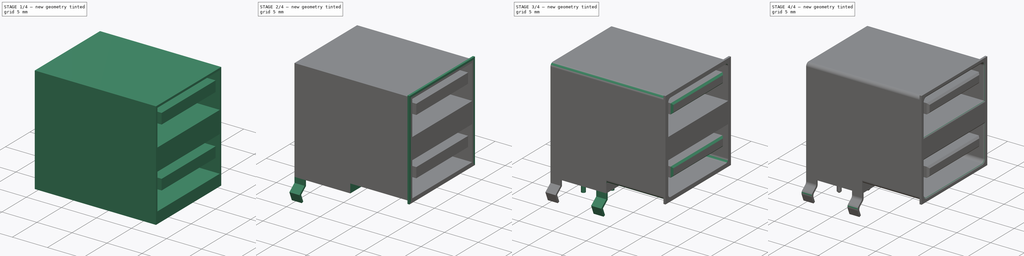
[diagram: build sequence overview — one tinted view per stage of 4, left to right]
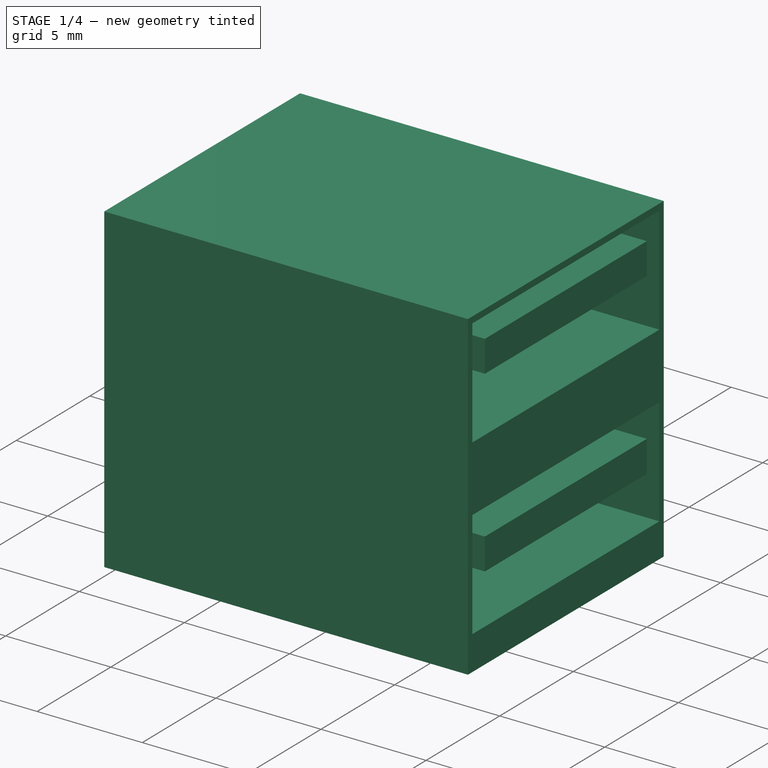
[diagram: stage 1 of 4 — iso view after this stage's code; geometry added in this stage tinted green]
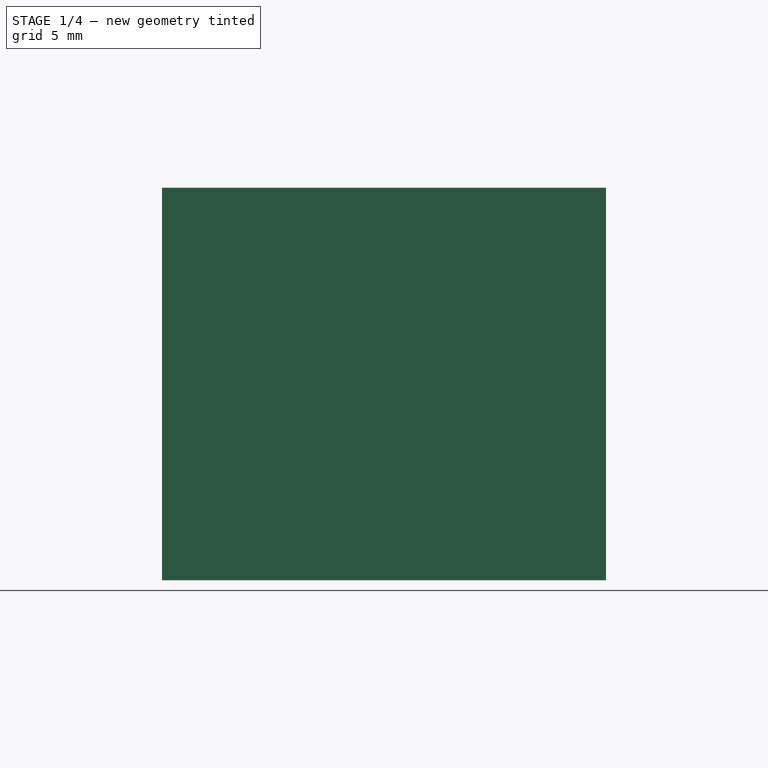
[diagram: stage 1 of 4 — front view after this stage's code; geometry added in this stage tinted green]
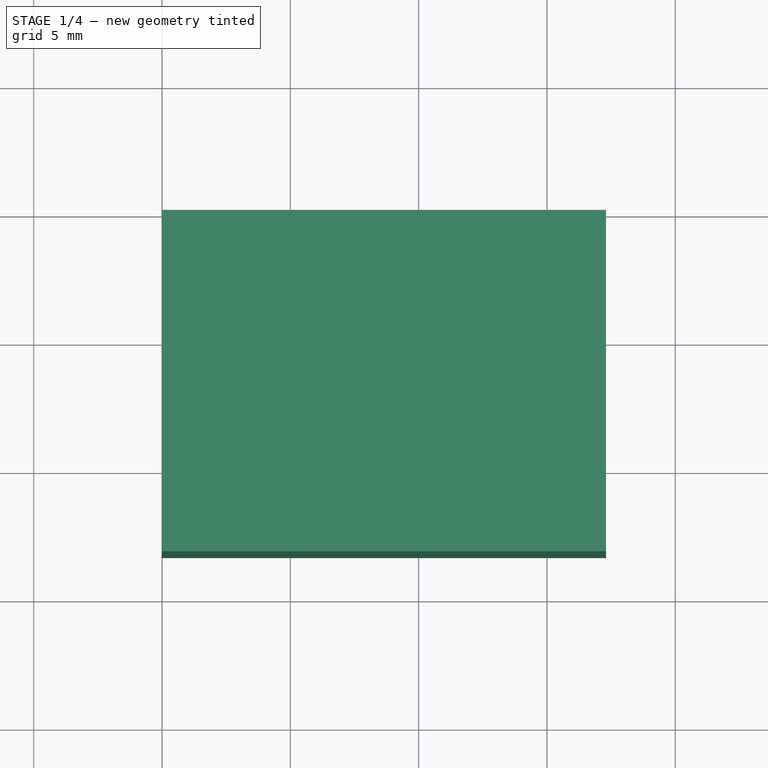
[diagram: stage 1 of 4 — top view after this stage's code; geometry added in this stage tinted green]
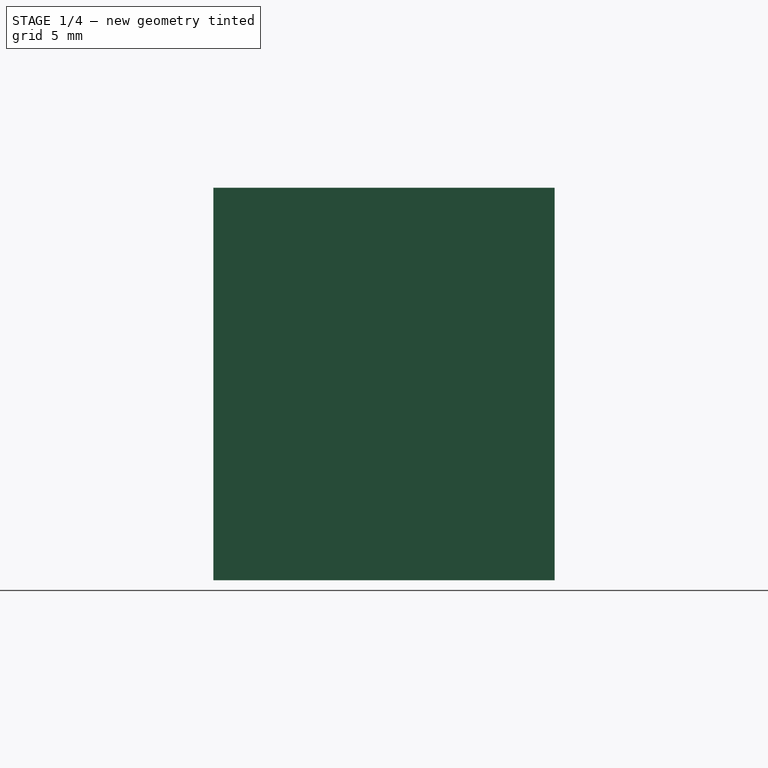
[diagram: stage 1 of 4 — right view after this stage's code; geometry added in this stage tinted green]
FCSTD DOCUMENT  (FreeCAD 0.14R3702 (Git))
Label: USB-2_0-type-A-Dual-Stacked-jack-PCB
License: CC-BY 3.0
LicenseURL: http://creativecommons.org/licenses/by/3.0/
objects: Sketcher::SketchObject×7, PartDesign::Pad×5, PartDesign::Fillet×3, PartDesign::Pocket×2, PartDesign::Chamfer×2, PartDesign::LinearPattern×1
note: 27 computed .brp shape members not serialized (recipe doc carries the construction recipe); baked Part::Feature solids carry a one-line shape summary decoded from their .brp

FEATURE [Sketcher::SketchObject] Sketch
  sketch-geometry (4):
    g0: LineSegment StartX=0 StartY=0 StartZ=0 EndX=17.3 EndY=0 EndZ=0
    g1: LineSegment StartX=17.3 StartY=0 StartZ=0 EndX=17.3 EndY=-13.3 EndZ=0
    g2: LineSegment StartX=17.3 StartY=-13.3 StartZ=0 EndX=0 EndY=-13.3 EndZ=0
    g3: LineSegment StartX=0 StartY=-13.3 StartZ=0 EndX=0 EndY=0 EndZ=0
  constraints (11):
    c: Coincident(g0,g1)
    c: Coincident(g1,g2)
    c: Coincident(g2,g3)
    c: Coincident(g3,g0)
    c: Horizontal(g0)
    c: Horizontal(g2)
    c: Vertical(g1)
    c: Vertical(g3)
    c: Coincident(g0,g-1)
    c: DistanceX(g-1,g0) = 17.3
    c: DistanceY(g0,g1) = -13.3
FEATURE [PartDesign::Pad] Pad
  Length = 15.29
  Length2 = 100
  Sketch = -> Sketch
  Type = 0
FEATURE [Sketcher::SketchObject] Sketch001
  ExternalGeometry = -> [Pad]
  Placement = pos=(17.3,0,0) rot=(0.57735,0.57735,0.57735;2.0944rad)
  Support = -> Pad [Face2]
  sketch-geometry (10):
    g0: LineSegment StartX=-13 StartY=6.75 StartZ=0 EndX=-0.3 EndY=6.75 EndZ=0
    g1: LineSegment StartX=-0.3 StartY=6.75 StartZ=0 EndX=-0.3 EndY=1.63 EndZ=0
    g2: LineSegment StartX=-0.3 StartY=1.63 StartZ=0 EndX=-13 EndY=1.63 EndZ=0
    g3: LineSegment StartX=-13 StartY=1.63 StartZ=0 EndX=-13 EndY=6.75 EndZ=0
    g4: LineSegment StartX=-13 StartY=14.99 StartZ=0 EndX=-0.3 EndY=14.99 EndZ=0
    g5: LineSegment StartX=-0.3 StartY=14.99 StartZ=0 EndX=-0.3 EndY=9.87 EndZ=0
    g6: LineSegment StartX=-0.3 StartY=9.87 StartZ=0 EndX=-13 EndY=9.87 EndZ=0
    g7: LineSegment StartX=-13 StartY=9.87 StartZ=0 EndX=-13 EndY=14.99 EndZ=0
    g8: LineSegment [constr] StartX=-13 StartY=12.43 StartZ=0 EndX=-0.3 EndY=12.43 EndZ=0
    g9: LineSegment [constr] StartX=-13 StartY=4.19 StartZ=0 EndX=-0.3 EndY=4.19 EndZ=0
  constraints (32):
    c: Coincident(g0,g1)
    c: Coincident(g1,g2)
    c: Coincident(g2,g3)
    c: Coincident(g3,g0)
    c: Horizontal(g0)
    c: Horizontal(g2)
    c: Vertical(g1)
    c: Vertical(g3)
    c: Coincident(g4,g5)
    c: Coincident(g5,g6)
    c: Coincident(g6,g7)
    c: Coincident(g7,g4)
    c: Horizontal(g4)
    c: Horizontal(g6)
    c: Vertical(g5)
    c: Vertical(g7)
    c: PointOnObject(g8,g7)
    c: PointOnObject(g8,g5)
    c: Horizontal(g8)
    c: PointOnObject(g9,g3)
    c: PointOnObject(g9,g1)
    c: Horizontal(g9)
    c: Symmetric(g6,g4,g8)
    c: Symmetric(g2,g0,g9)
    c: Equal(g5,g1)
    c: Equal(g6,g2)
    c: DistanceY(g-1,g9) = 4.19
    c: DistanceY(g1,g0) = 5.12
    c: DistanceY(g4,g-3) = 0.3
    c: DistanceX(g4,g-3) = 0.3
    c: DistanceX(g4,g-3) = -0.3
    c: DistanceX(g-1,g0) = -0.3
FEATURE [PartDesign::Pocket] Pocket
  Length = 9
  Sketch = -> Sketch001
  Type = 0
FEATURE [Sketcher::SketchObject] Sketch002
  Placement = pos=(8.3,0,0) rot=(0.57735,0.57735,0.57735;2.0944rad)
  Support = -> Pocket [Face15]
  sketch-geometry (8):
    g0: LineSegment StartX=-12.15 StartY=14 StartZ=0 EndX=-1.15 EndY=14 EndZ=0
    g1: LineSegment StartX=-1.15 StartY=14 StartZ=0 EndX=-1.15 EndY=12.5 EndZ=0
    g2: LineSegment StartX=-1.15 StartY=12.5 StartZ=0 EndX=-12.15 EndY=12.5 EndZ=0
    g3: LineSegment StartX=-12.15 StartY=12.5 StartZ=0 EndX=-12.15 EndY=14 EndZ=0
    g4: LineSegment StartX=-12.15 StartY=5.5 StartZ=0 EndX=-1.15 EndY=5.5 EndZ=0
    g5: LineSegment StartX=-1.15 StartY=5.5 StartZ=0 EndX=-1.15 EndY=4 EndZ=0
    g6: LineSegment StartX=-1.15 StartY=4 StartZ=0 EndX=-12.15 EndY=4 EndZ=0
    g7: LineSegment StartX=-12.15 StartY=4 StartZ=0 EndX=-12.15 EndY=5.5 EndZ=0
  constraints (24):
    c: Coincident(g0,g1)
    c: Coincident(g1,g2)
    c: Coincident(g2,g3)
    c: Coincident(g3,g0)
    c: Horizontal(g0)
    c: Horizontal(g2)
    c: Vertical(g1)
    c: Vertical(g3)
    c: Coincident(g4,g5)
    c: Coincident(g5,g6)
    c: Coincident(g6,g7)
    c: Coincident(g7,g4)
    c: Horizontal(g4)
    c: Horizontal(g6)
    c: Vertical(g5)
    c: Vertical(g7)
    c: DistanceY(g1,g0) = 1.5
    c: DistanceX(g2,g1) = 11
    c: DistanceX(g5,g6) = -11
    c: DistanceY(g5,g4) = 1.5
    c: DistanceY(g5,g1) = 8.5
    c: DistanceY(g-1,g5) = 4
    c: DistanceX(g-1,g5) = -1.15
    c: DistanceX(g-1,g1) = -1.15
FEATURE [PartDesign::Pad] Pad001
  Length = 9
  Length2 = 100
  Sketch = -> Sketch002
  Type = 0
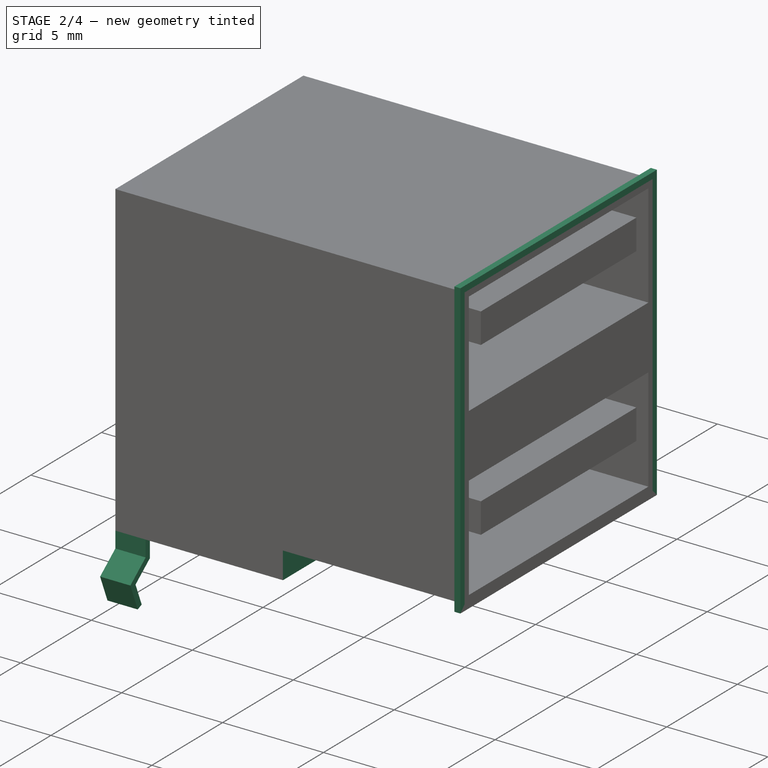
[diagram: stage 2 of 4 — iso view after this stage's code; geometry added in this stage tinted green]
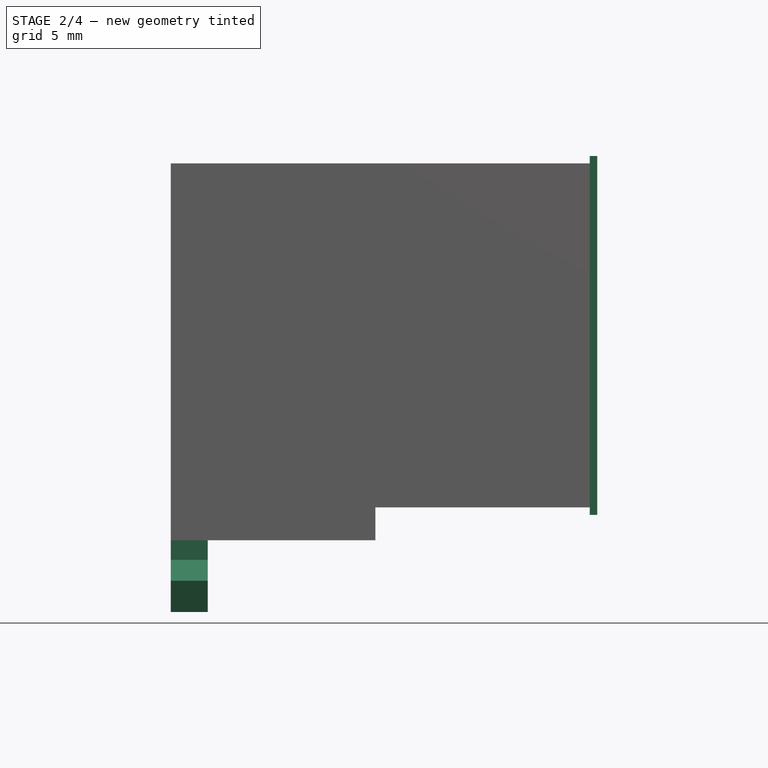
[diagram: stage 2 of 4 — front view after this stage's code; geometry added in this stage tinted green]
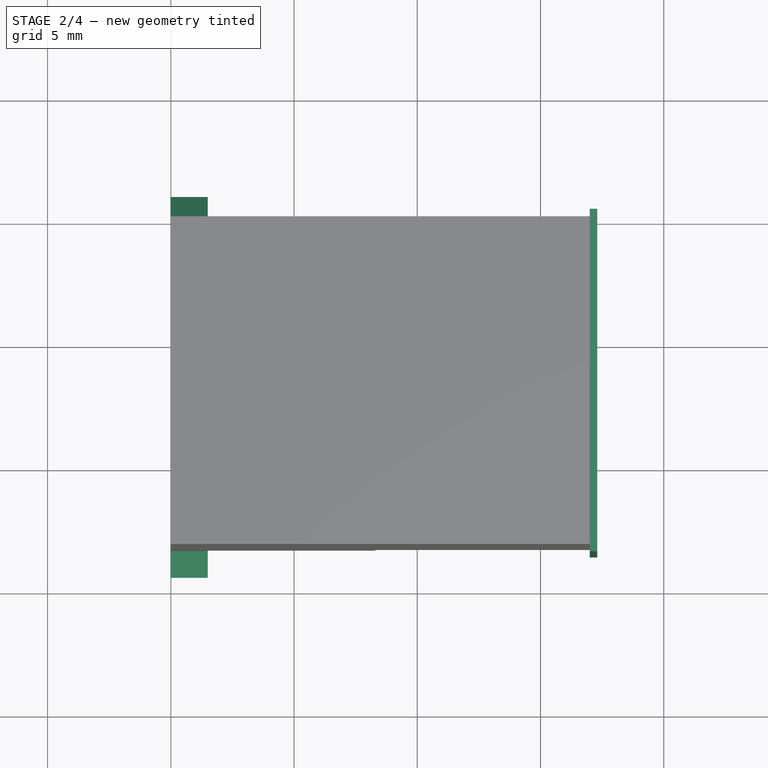
[diagram: stage 2 of 4 — top view after this stage's code; geometry added in this stage tinted green]
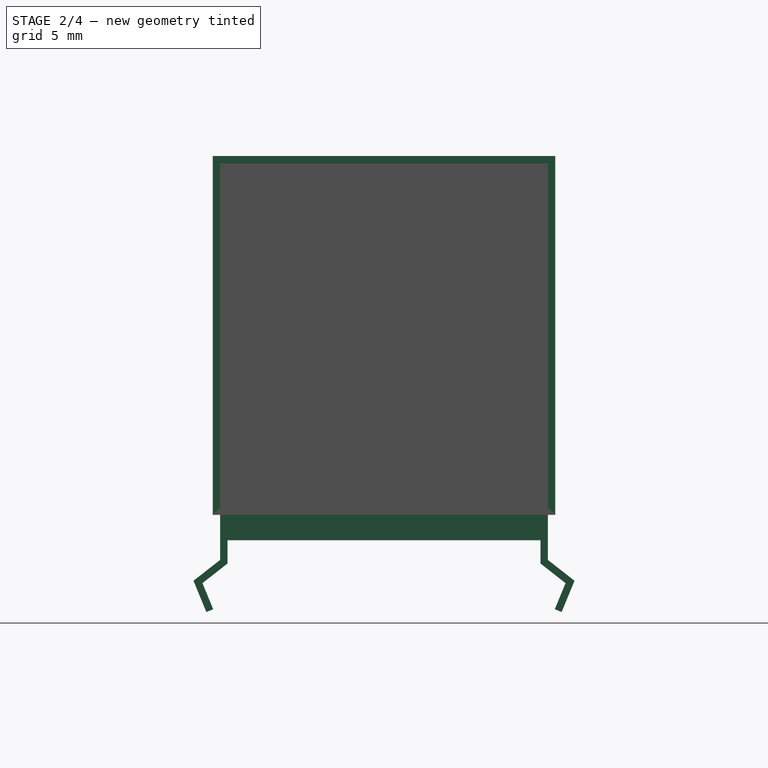
[diagram: stage 2 of 4 — right view after this stage's code; geometry added in this stage tinted green]
FEATURE [Sketcher::SketchObject] Sketch003
  ExternalGeometry = -> [Pad001]
  Placement = pos=(17.3,0,0) rot=(0.57735,0.57735,0.57735;2.0944rad)
  Support = -> Pad001 [Face3]
  sketch-geometry (4):
    g0: LineSegment StartX=0 StartY=0 StartZ=0 EndX=-13.3 EndY=0 EndZ=0
    g1: LineSegment StartX=-13.3 StartY=0 StartZ=0 EndX=-13.3 EndY=1.33 EndZ=0
    g2: LineSegment StartX=-13.3 StartY=1.33 StartZ=0 EndX=0 EndY=1.33 EndZ=0
    g3: LineSegment StartX=0 StartY=1.33 StartZ=0 EndX=0 EndY=0 EndZ=0
  constraints (11):
    c: Coincident(g0,g1)
    c: Coincident(g1,g2)
    c: Coincident(g2,g3)
    c: Coincident(g3,g0)
    c: Horizontal(g0)
    c: Horizontal(g2)
    c: Vertical(g1)
    c: Vertical(g3)
    c: Coincident(g0,g-1)
    c: DistanceX(g-1,g0) = -13.3
    c: DistanceY(g2,g-3) = 0.3
FEATURE [PartDesign::Pocket] Pocket001
  Length = 9
  Sketch = -> Sketch003
  Type = 0
FEATURE [Sketcher::SketchObject] Sketch004
  ExternalGeometry = -> [Pocket001]
  Placement = pos=(17.3,0,0) rot=(0.57735,0.57735,0.57735;2.0944rad)
  Support = -> Pocket001 [Face5]
  sketch-geometry (8):
    g0: LineSegment StartX=-13.6 StartY=15.59 StartZ=0 EndX=0.3 EndY=15.59 EndZ=0
    g1: LineSegment StartX=0.3 StartY=15.59 StartZ=0 EndX=0.3 EndY=1.03 EndZ=0
    g2: LineSegment StartX=0.3 StartY=1.03 StartZ=0 EndX=-13.6 EndY=1.03 EndZ=0
    g3: LineSegment StartX=-13.6 StartY=1.03 StartZ=0 EndX=-13.6 EndY=15.59 EndZ=0
    g4: LineSegment StartX=0 StartY=1.33 StartZ=0 EndX=-13.3 EndY=1.33 EndZ=0
    g5: LineSegment StartX=-13.3 StartY=1.33 StartZ=0 EndX=-13.3 EndY=15.29 EndZ=0
    g6: LineSegment StartX=-13.3 StartY=15.29 StartZ=0 EndX=0 EndY=15.29 EndZ=0
    g7: LineSegment StartX=0 StartY=15.29 StartZ=0 EndX=0 EndY=1.33 EndZ=0
  constraints (23):
    c: Coincident(g0,g1)
    c: Coincident(g1,g2)
    c: Coincident(g2,g3)
    c: Coincident(g3,g0)
    c: Horizontal(g0)
    c: Horizontal(g2)
    c: Vertical(g1)
    c: Vertical(g3)
    c: DistanceX(g-1,g1) = 0.3
    c: DistanceX(g1,g2) = -13.9
    c: DistanceY(g-3,g0) = 0.3
    c: DistanceY(g1,g-3) = 0.3
    c: Coincident(g4,g5)
    c: Coincident(g5,g6)
    c: Coincident(g6,g7)
    c: Coincident(g7,g4)
    c: Horizontal(g4)
    c: Horizontal(g6)
    c: Vertical(g5)
    c: Vertical(g7)
    c: Coincident(g4,g-3)
    c: DistanceX(g0,g5) = 0.3
    c: DistanceY(g5,g0) = 0.3
FEATURE [PartDesign::Pad] Pad002
  Length = 0.3
  Length2 = 100
  Reversed = true
  Sketch = -> Sketch004
  Type = 0
FEATURE [Sketcher::SketchObject] Sketch005
  ExternalGeometry = -> [Pad002]
  Placement = pos=(0,0,0) rot=(0.57735,-0.57735,-0.57735;2.0944rad)
  Support = -> Pad002 [Face5]
  sketch-geometry (16):
    g0: LineSegment StartX=0 StartY=0 StartZ=0 EndX=0 EndY=-0.8 EndZ=0
    g1: LineSegment StartX=0 StartY=-0.8 StartZ=0 EndX=-1.08003 EndY=-1.64588 EndZ=0
    g2: LineSegment StartX=-1.08003 StartY=-1.64588 StartZ=0 EndX=-0.557405 EndY=-2.91429 EndZ=0
    g3: LineSegment StartX=-0.557405 StartY=-2.91429 StartZ=0 EndX=-0.280028 EndY=-2.8 EndZ=0
    g4: LineSegment StartX=-0.280028 StartY=-2.8 StartZ=0 EndX=-0.716019 EndY=-1.74185 EndZ=0
    g5: LineSegment StartX=-0.716019 StartY=-1.74185 StartZ=0 EndX=0.3 EndY=-0.946099 EndZ=0
    g6: LineSegment StartX=0.3 StartY=-0.946099 StartZ=0 EndX=0.3 EndY=0 EndZ=0
    g7: LineSegment StartX=0.3 StartY=0 StartZ=0 EndX=0 EndY=0 EndZ=0
    g8: LineSegment StartX=13.3 StartY=0 StartZ=0 EndX=13.3 EndY=-0.8 EndZ=0
    g9: LineSegment StartX=13.3 StartY=-0.8 StartZ=0 EndX=14.38 EndY=-1.64588 EndZ=0
    g10: LineSegment StartX=14.38 StartY=-1.64588 StartZ=0 EndX=13.8574 EndY=-2.91429 EndZ=0
    g11: LineSegment StartX=13.8574 StartY=-2.91429 StartZ=0 EndX=13.58 EndY=-2.8 EndZ=0
    g12: LineSegment StartX=13.58 StartY=-2.8 StartZ=0 EndX=14.016 EndY=-1.74185 EndZ=0
    g13: LineSegment StartX=14.016 StartY=-1.74185 StartZ=0 EndX=13 EndY=-0.946099 EndZ=0
    g14: LineSegment StartX=13 StartY=-0.946099 StartZ=0 EndX=13 EndY=0 EndZ=0
    g15: LineSegment StartX=13 StartY=0 StartZ=0 EndX=13.3 EndY=0 EndZ=0
  constraints (46):
    c: Coincident(g-1,g0)
    c: Vertical(g0)
    c: Coincident(g0,g1)
    c: Coincident(g1,g2)
    c: Coincident(g2,g3)
    c: Coincident(g3,g4)
    c: Coincident(g4,g5)
    c: Coincident(g5,g6)
    c: Vertical(g6)
    c: Coincident(g6,g7)
    c: Coincident(g7,g0)
    c: Parallel(g5,g1)
    c: Parallel(g2,g4)
    c: Perpendicular(g3,g2)
    c: Perpendicular(g7,g6)
    c: DistanceX(g-1,g6) = 0.3
    c: Distance(g2,g3) = 0.3
    c: Distance(g4,g1) = 0.3
    c: DistanceY(g6,g3) = -2.8
    c: DistanceX(g3,g1) = -0.8
    c: DistanceX(g-3,g1) = -0.780028
    c: Equal(g2,g1)
    c: DistanceY(g-1,g0) = -0.8
    c: Coincident(g-4,g8)
    c: Vertical(g8)
    c: Coincident(g8,g9)
    c: Coincident(g9,g10)
    c: Coincident(g10,g11)
    c: Coincident(g11,g12)
    c: Coincident(g12,g13)
    c: Coincident(g13,g14)
    c: PointOnObject(g14,g-1)
    c: Vertical(g14)
    c: Coincident(g14,g15)
    c: Coincident(g15,g8)
    c: Perpendicular(g11,g10)
    c: Equal(g15,g7)
    c: Equal(g6,g14)
    c: Equal(g5,g13)
    c: Parallel(g9,g13)
    c: Parallel(g12,g10)
    c: Equal(g10,g2)
    c: Equal(g11,g3)
    c: Equal(g8,g0)
    c: Equal(g9,g1)
    c: Equal(g12,g4)
FEATURE [PartDesign::Pad] Pad003
  Length = 1.5
  Length2 = 100
  Reversed = true
  Sketch = -> Sketch005
  Type = 0
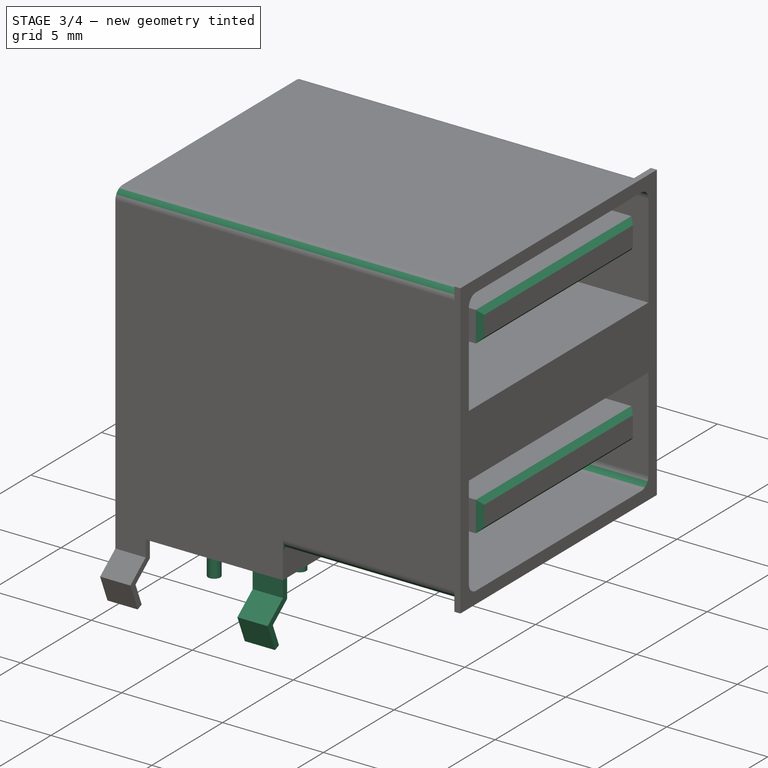
[diagram: stage 3 of 4 — iso view after this stage's code; geometry added in this stage tinted green]
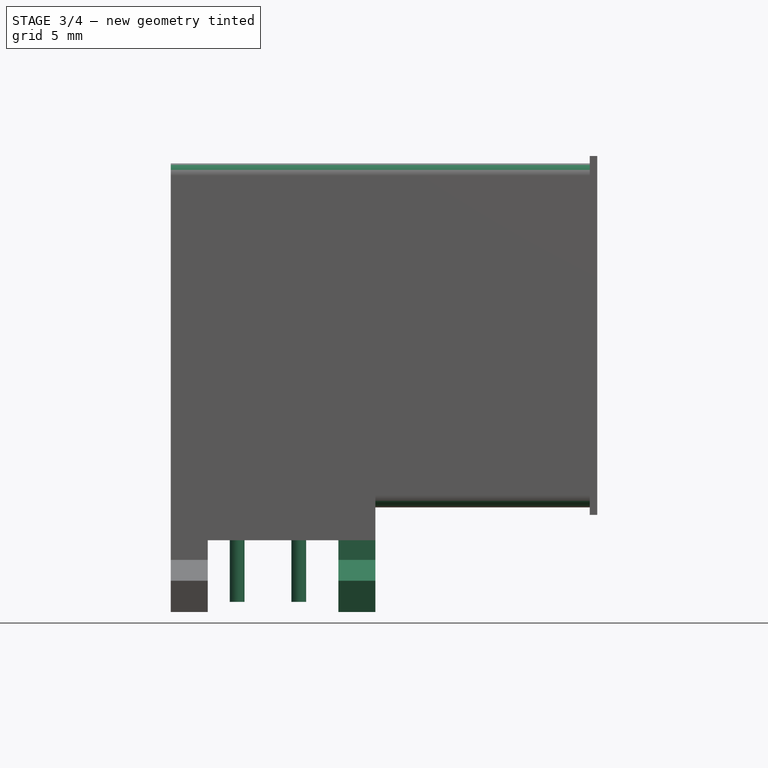
[diagram: stage 3 of 4 — front view after this stage's code; geometry added in this stage tinted green]
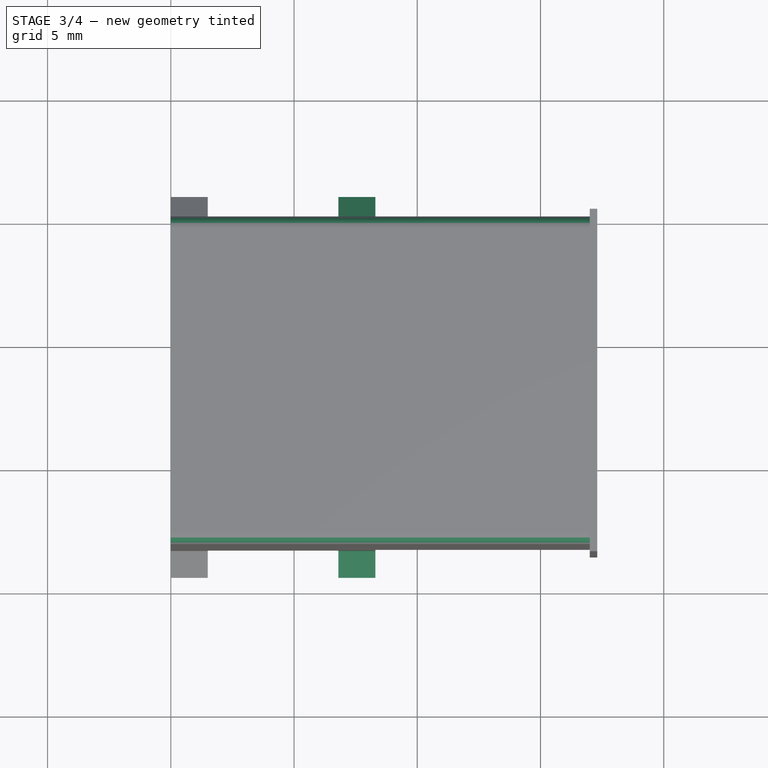
[diagram: stage 3 of 4 — top view after this stage's code; geometry added in this stage tinted green]
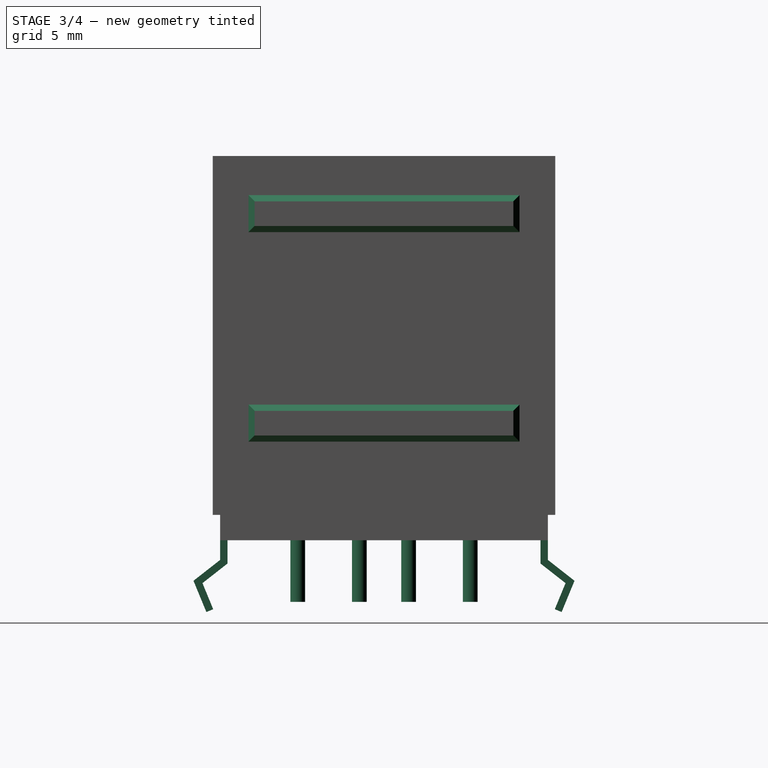
[diagram: stage 3 of 4 — right view after this stage's code; geometry added in this stage tinted green]
FEATURE [PartDesign::LinearPattern] LinearPattern
  Direction = -> Pad003 [Edge6]
  Length = 6.8
  Occurrences = 2
  Originals = -> [Pad003]
  Reversed = true
FEATURE [Sketcher::SketchObject] Sketch006
  ExternalGeometry = -> [LinearPattern]
  Placement = pos=(0,0,0) rot=(1,0,0;3.14159rad)
  Support = -> LinearPattern [Face13]
  sketch-geometry (10):
    g0: Circle CenterX=2.69 CenterY=10.15 CenterZ=0 NormalX=0 NormalY=0 NormalZ=1 Radius=0.3
    g1: Circle CenterX=2.69 CenterY=7.65 CenterZ=0 NormalX=0 NormalY=0 NormalZ=1 Radius=0.3
    g2: Circle CenterX=2.69 CenterY=5.65 CenterZ=0 NormalX=0 NormalY=0 NormalZ=1 Radius=0.3
    g3: Circle CenterX=2.69 CenterY=3.15 CenterZ=0 NormalX=0 NormalY=0 NormalZ=1 Radius=0.3
    g4: Circle CenterX=5.19 CenterY=10.15 CenterZ=0 NormalX=0 NormalY=0 NormalZ=1 Radius=0.3
    g5: Circle CenterX=5.19 CenterY=7.65 CenterZ=0 NormalX=0 NormalY=0 NormalZ=1 Radius=0.3
    g6: Circle CenterX=5.19 CenterY=5.65 CenterZ=0 NormalX=0 NormalY=0 NormalZ=1 Radius=0.3
    g7: Circle CenterX=5.19 CenterY=3.15 CenterZ=0 NormalX=0 NormalY=0 NormalZ=1 Radius=0.3
    g8: LineSegment [constr] StartX=2.69 StartY=10.15 StartZ=0 EndX=2.69 EndY=3.15 EndZ=0
    g9: LineSegment [constr] StartX=5.19 StartY=10.15 StartZ=0 EndX=5.19 EndY=3.15 EndZ=0
  constraints (30):
    c: Equal(g0,g4)
    c: Equal(g1,g5)
    c: Equal(g6,g2)
    c: Equal(g7,g3)
    c: Equal(g7,g6)
    c: Equal(g6,g5)
    c: Equal(g5,g4)
    c: Vertical(g8)
    c: PointOnObject(g2,g8)
    c: PointOnObject(g1,g8)
    c: PointOnObject(g0,g8)
    c: PointOnObject(g3,g8)
    c: Vertical(g9)
    c: Coincident(g0,g8)
    c: Coincident(g3,g8)
    c: Coincident(g4,g9)
    c: Coincident(g7,g9)
    c: PointOnObject(g6,g9)
    c: PointOnObject(g5,g9)
    c: Radius(g4) = 0.3
    c: DistanceY(g0,g1) = -2.5
    c: DistanceY(g1,g2) = -2
    c: DistanceY(g2,g3) = -2.5
    c: Equal(g9,g8)
    c: DistanceY(g5,g4) = 2.5
    c: DistanceY(g5,g6) = -2
    c: DistanceX(g4,g0) = -2.5
    c: DistanceY(g-1,g3) = 3.15
    c: DistanceY(g-1,g7) = 3.15
    c: DistanceX(g3,g-3) = 14.61
FEATURE [PartDesign::Pad] Pad004
  Length = 2.5
  Length2 = 100
  Sketch = -> Sketch006
  Type = 0
FEATURE [PartDesign::Chamfer] Chamfer
  Base = -> Pad004 [Edge193,Edge191,Edge188,Edge194,Edge202,Edge201,Edge199,Edge196]
  Size = 0.25
FEATURE [PartDesign::Fillet] Fillet
  Base = -> Chamfer [Edge79,Edge87,Edge31,Edge77,Edge83,Edge28,Edge45,Edge47]
  Radius = 0.5
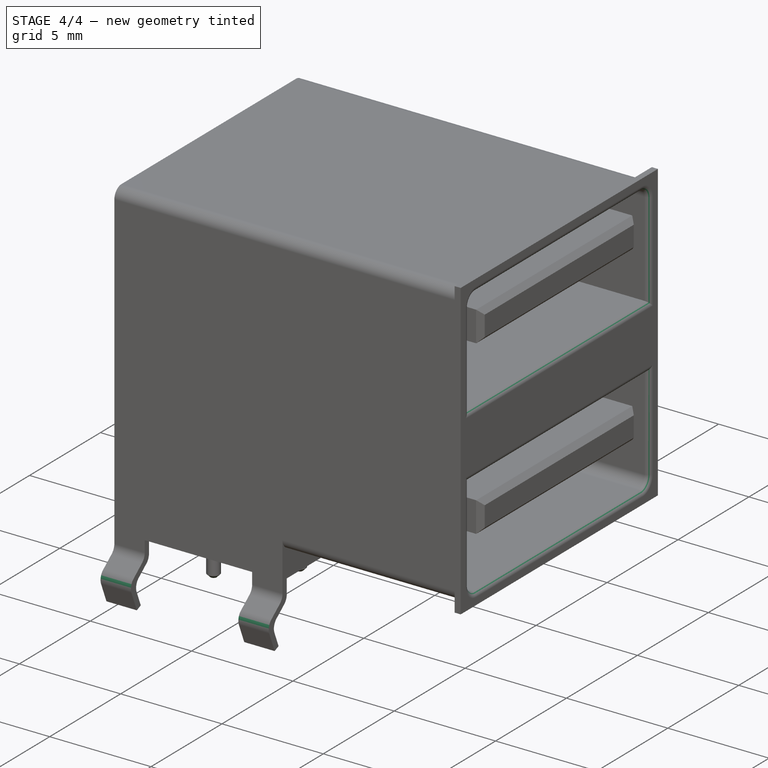
[diagram: stage 4 of 4 — iso view after this stage's code; geometry added in this stage tinted green]
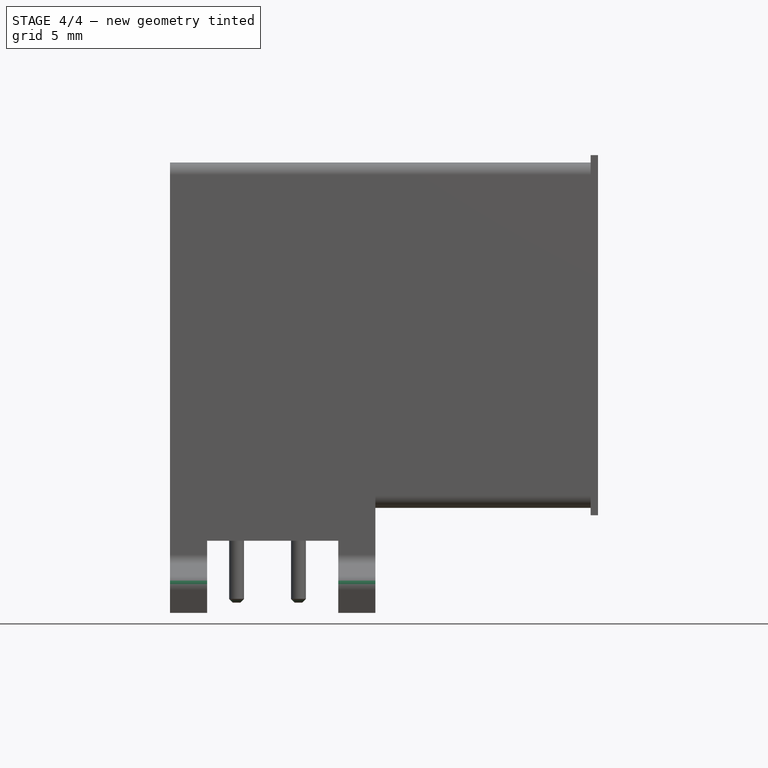
[diagram: stage 4 of 4 — front view after this stage's code; geometry added in this stage tinted green]
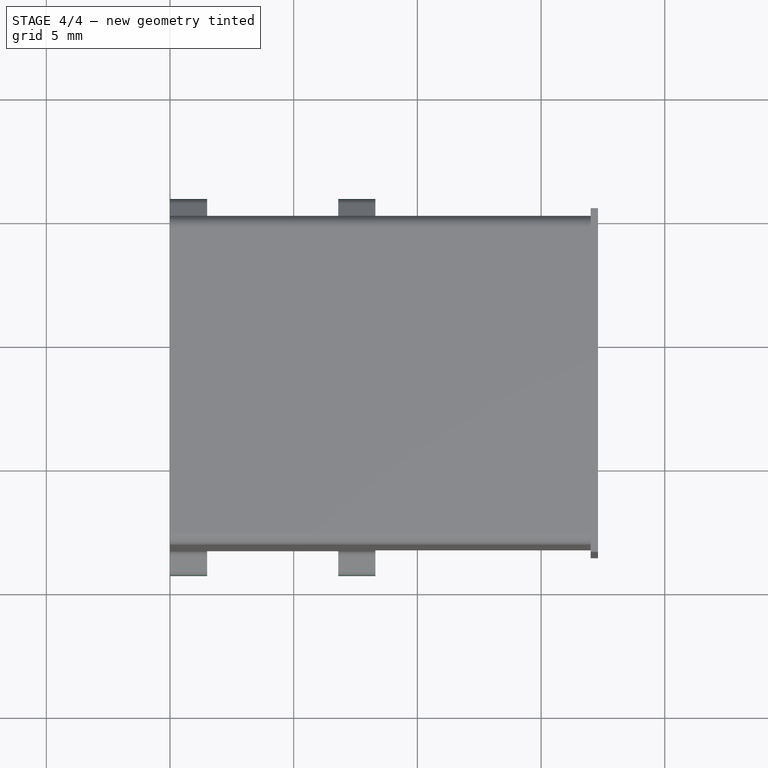
[diagram: stage 4 of 4 — top view after this stage's code; geometry added in this stage tinted green]
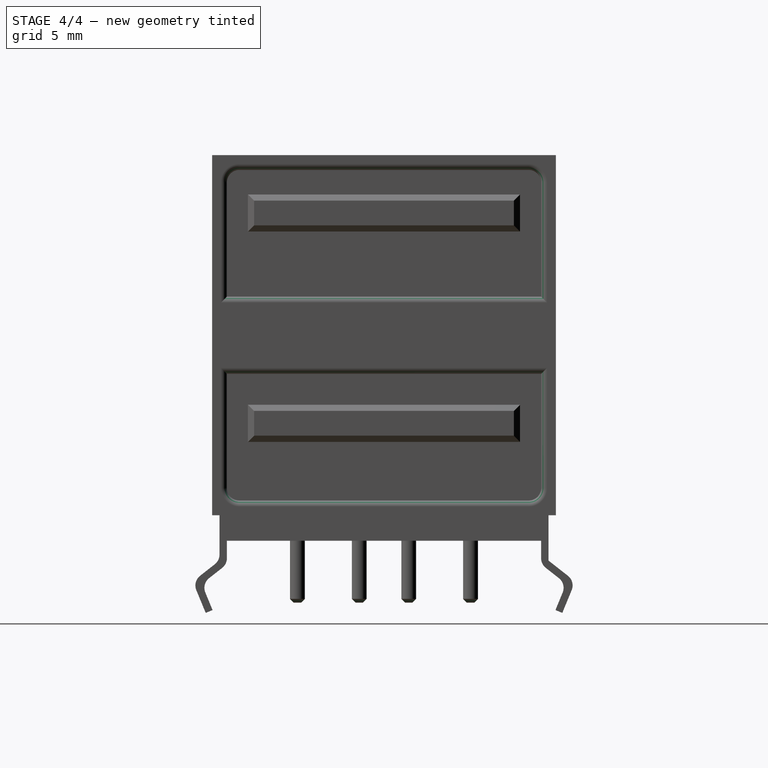
[diagram: stage 4 of 4 — right view after this stage's code; geometry added in this stage tinted green]
FEATURE [PartDesign::Fillet] Fillet001
  Base = -> Fillet [Edge11,Edge14,Edge16,Edge18,Edge20,Edge22,Edge31,Edge32,Edge33,Edge34,Edge35,Edge36,Edge37,Edge38,Edge39,Edge40]
  Radius = 0.25
FEATURE [PartDesign::Fillet] Fillet002
  Base = -> Fillet001 [Edge173,Edge255,Edge176,Edge256,Edge258,Edge226,Edge264,Edge224,Edge254,Edge215,Edge267,Edge261,Edge223,Edge222]
  Radius = 0.5
FEATURE [PartDesign::Chamfer] Chamfer001
  Base = -> Fillet002 [Edge175,Edge183,Edge177,Edge169,Edge171,Edge179,Edge181,Edge173]
  Size = 0.15
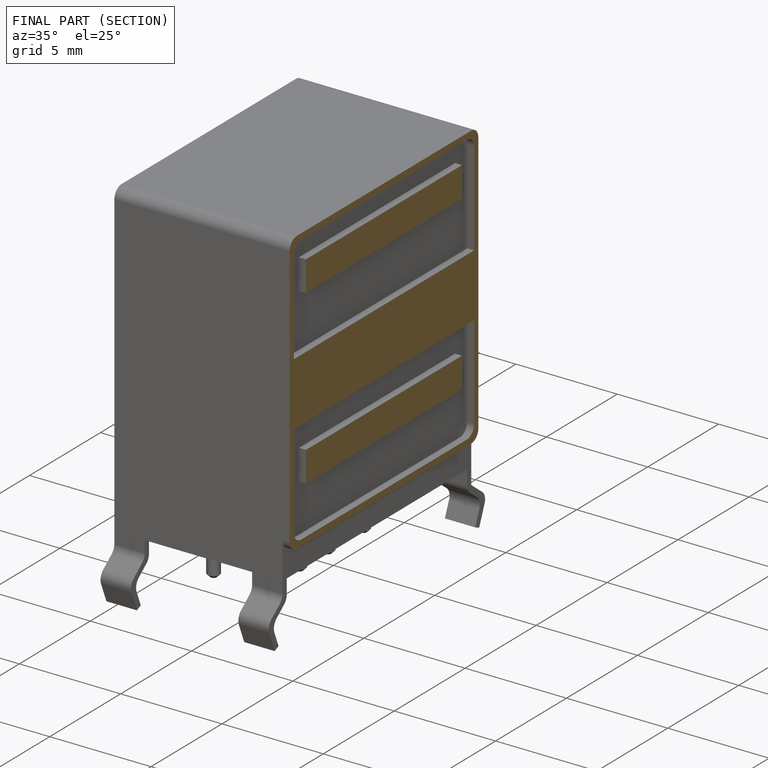
[diagram: finished part — half-section view (interior)]
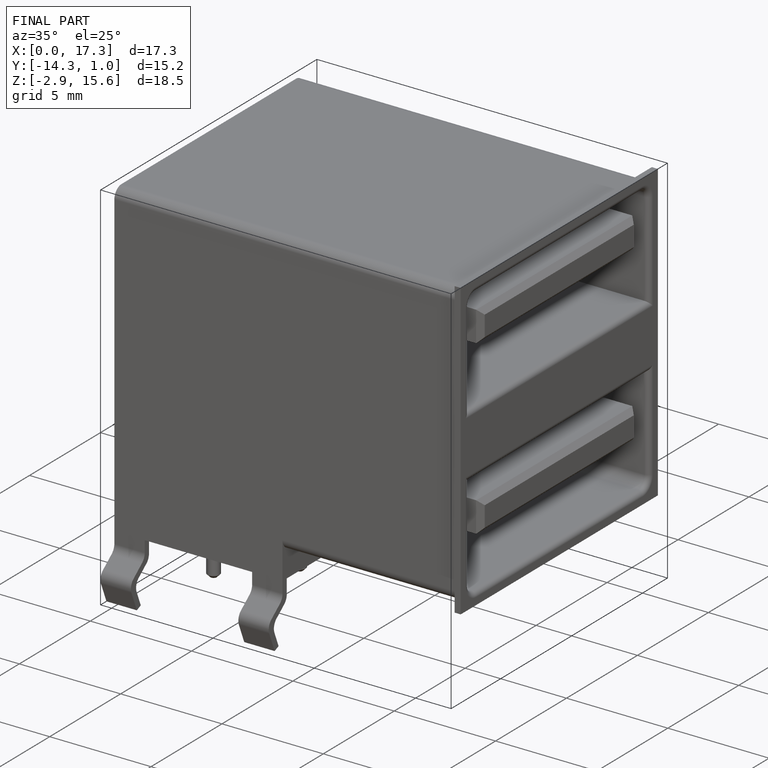
[diagram: finished part — iso view with bounding-box wireframe]
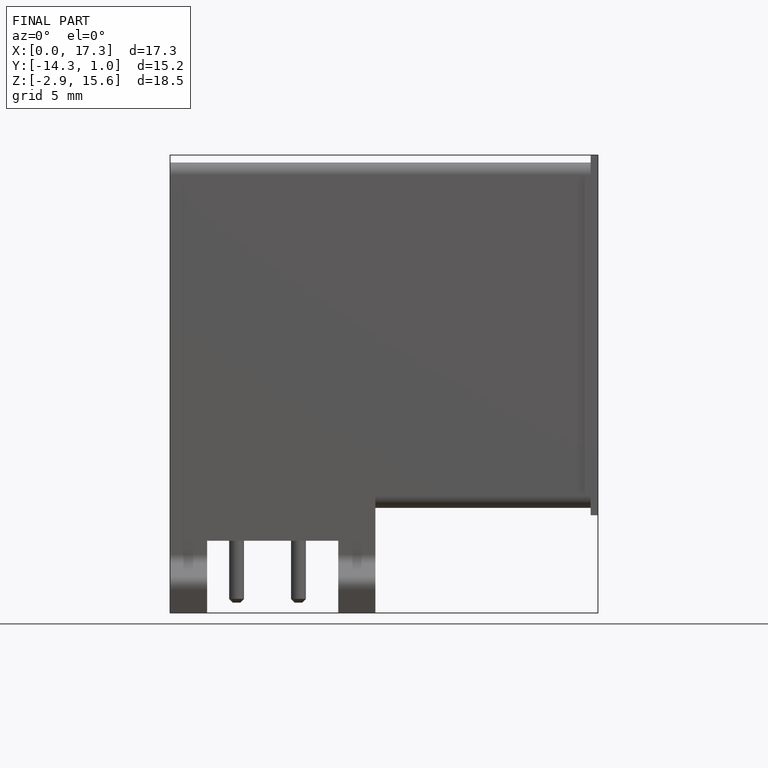
[diagram: finished part — front view with bounding-box wireframe]
